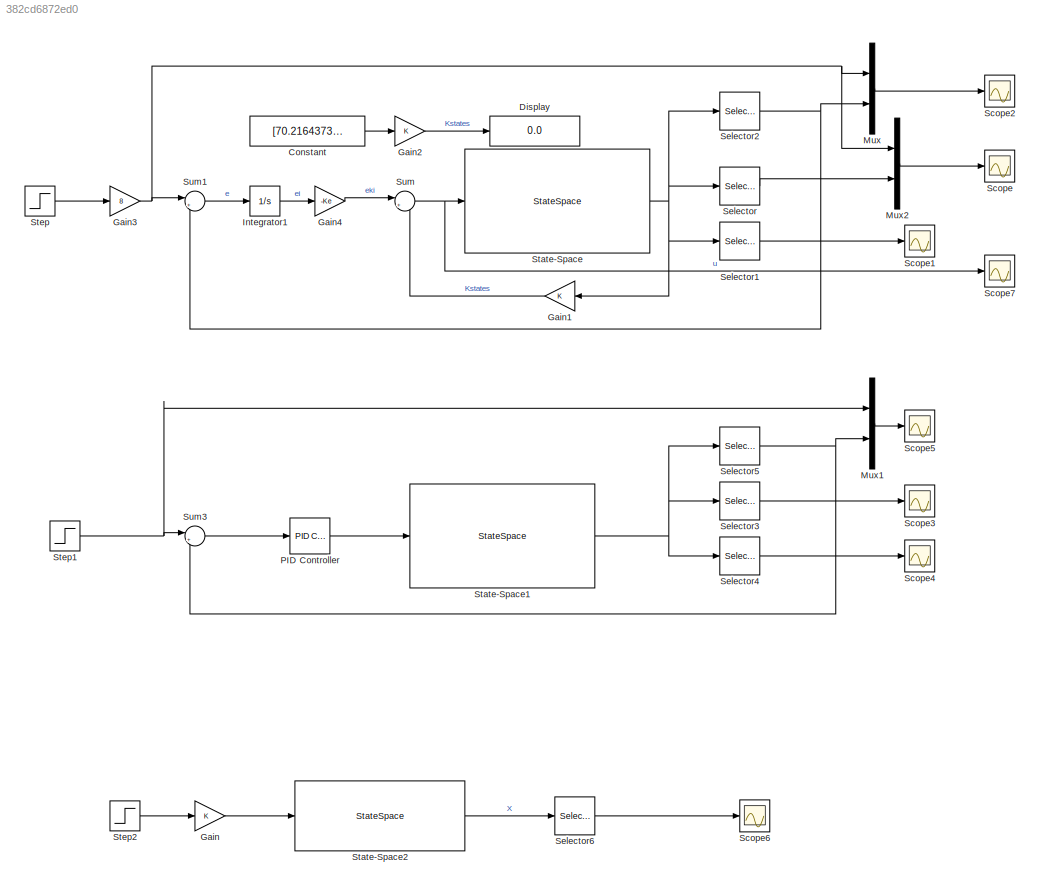
MODEL slx_382cd6872ed0
KIND model
CONFIG AbsTol = auto
CONFIG EnableMultiTasking = off
CONFIG FixedStep = 0.01
CONFIG MaxStep = auto
CONFIG MinStep = auto
CONFIG RelTol = 1e-3
CONFIG SampleTimeConstraint = Unconstrained
CONFIG SolverName = ode4
CONFIG StartTime = 0.0
CONFIG StopTime = tfim
BLOCK [Constant] Constant
  Value = [70.21643737196266, -7.864978745155763, 61.3877607433977, -9.588927142946162]
BLOCK [Display] Display
  Decimation = 1
BLOCK [Gain] Gain
BLOCK [Gain] Gain1
  Gain = K
  Multiplication = Matrix(K*u)
  NameLocation = top
BLOCK [Gain] Gain2
  Gain = K
  Multiplication = Matrix(K*u)
BLOCK [Gain] Gain3
  Gain = 8
BLOCK [Gain] Gain4
  Gain = -Ke
BLOCK [Integrator] Integrator1
BLOCK [Mux] Mux
  DisplayOption = bar
  Inputs = 2
BLOCK [Mux] Mux1
  Commented = on
  DisplayOption = bar
  Inputs = 2
BLOCK [Mux] Mux2
  DisplayOption = bar
  Inputs = 2
BLOCK [Reference] PID Controller  REF=slpidlib/PID Controller
  Commented = on
  LibrarySourceBlock = simulink/Continuous/PID Controller
  SourceBlock = slpidlib/PID Controller
  SourceType = PID 1dof
BLOCK [Scope] Scope
  Floating = off
  NumInputPorts = 1
  ScopeSpecificationString = Simulink.scopes.TimeScopeBlockCfg('CurrentConfiguration', extmgr.ConfigurationSet(extmgr.Configuration('Core','General UI',true),extmgr.Configuration('Core','Source UI',true),extmgr.Configuration('Sources','WiredSimulink',true),extmgr.Configuration('Visuals','Time Domain',true,'SerializedDisplays',{struct('MinYLimReal','-1.06069','MaxYLimReal','9.54624','YLabelReal','','MinYLimMag','0.00000','MaxY...<+1427ch>
BLOCK [Scope] Scope1
  Floating = off
  NumInputPorts = 1
  ScopeSpecificationString = Simulink.scopes.TimeScopeBlockCfg('CurrentConfiguration', extmgr.ConfigurationSet(extmgr.Configuration('Core','General UI',true),extmgr.Configuration('Core','Source UI',true),extmgr.Configuration('Sources','WiredSimulink',true,'DataLoggingVariableName','ScopeData1'),extmgr.Configuration('Visuals','Time Domain',true,'SerializedDisplays',{struct('MinYLimReal','-0.47016','MaxYLimReal','0.3608','YLabe...<+1412ch>
BLOCK [Scope] Scope2
  Floating = off
  NumInputPorts = 1
  ScopeSpecificationString = Simulink.scopes.TimeScopeBlockCfg('CurrentConfiguration', extmgr.ConfigurationSet(extmgr.Configuration('Core','General UI',true),extmgr.Configuration('Core','Source UI',true),extmgr.Configuration('Sources','WiredSimulink',true,'DataLoggingVariableName','ScopeData1'),extmgr.Configuration('Visuals','Time Domain',true,'SerializedDisplays',{struct('MinYLimReal','-0.52656','MaxYLimReal','4.73908','YLab...<+1404ch>
BLOCK [Scope] Scope3
  Commented = on
  Floating = off
  NumInputPorts = 1
  ScopeSpecificationString = Simulink.scopes.TimeScopeBlockCfg('CurrentConfiguration', extmgr.ConfigurationSet(extmgr.Configuration('Core','General UI',true),extmgr.Configuration('Core','Source UI',true),extmgr.Configuration('Sources','WiredSimulink',true,'DataLoggingVariableName','ScopeData1'),extmgr.Configuration('Visuals','Time Domain',true,'SerializedDisplays',{struct('MinYLimReal','-0.53773','MaxYLimReal','4.8396','YLabe...<+1408ch>
BLOCK [Scope] Scope4
  Commented = on
  Floating = off
  NumInputPorts = 1
  ScopeSpecificationString = Simulink.scopes.TimeScopeBlockCfg('CurrentConfiguration', extmgr.ConfigurationSet(extmgr.Configuration('Core','General UI',true),extmgr.Configuration('Core','Source UI',true),extmgr.Configuration('Sources','WiredSimulink',true,'DataLoggingVariableName','ScopeData2'),extmgr.Configuration('Visuals','Time Domain',true,'SerializedDisplays',{struct('MinYLimReal','-0.47016','MaxYLimReal','0.3608','YLabe...<+1412ch>
BLOCK [Scope] Scope5
  Commented = on
  Floating = off
  NumInputPorts = 1
  ScopeSpecificationString = Simulink.scopes.TimeScopeBlockCfg('CurrentConfiguration', extmgr.ConfigurationSet(extmgr.Configuration('Core','General UI',true),extmgr.Configuration('Core','Source UI',true),extmgr.Configuration('Sources','WiredSimulink',true,'DataLoggingVariableName','ScopeData3'),extmgr.Configuration('Visuals','Time Domain',true,'SerializedDisplays',{struct('MinYLimReal','-0.12777','MaxYLimReal','1.1499','YLabe...<+1382ch>
BLOCK [Scope] Scope6
  Floating = off
  NumInputPorts = 1
  ScopeSpecificationString = Simulink.scopes.TimeScopeBlockCfg('CurrentConfiguration', extmgr.ConfigurationSet(extmgr.Configuration('Core','General UI',true),extmgr.Configuration('Core','Source UI',true),extmgr.Configuration('Sources','WiredSimulink',true,'DataLoggingVariableName','ScopeData1'),extmgr.Configuration('Visuals','Time Domain',true,'SerializedDisplays',{struct('MinYLimReal','-1.17576','MaxYLimReal','2.25501','YLab...<+1461ch>
BLOCK [Scope] Scope7
  Floating = off
  NumInputPorts = 1
  ScopeSpecificationString = Simulink.scopes.TimeScopeBlockCfg('CurrentConfiguration', extmgr.ConfigurationSet(extmgr.Configuration('Core','General UI',true),extmgr.Configuration('Core','Source UI',true),extmgr.Configuration('Sources','WiredSimulink',true,'DataLoggingVariableName','ScopeData2'),extmgr.Configuration('Visuals','Time Domain',true,'SerializedDisplays',{struct('MinYLimReal','-0.93356','MaxYLimReal','7.95894','YLab...<+1435ch>
BLOCK [Selector] Selector
  IndexOptions = Index vector (dialog)
  Indices = [1 3]
  InputPortWidth = 4
  OutputSizes = 1
BLOCK [Selector] Selector1
  IndexOptions = Index vector (dialog)
  Indices = [2 4]
  InputPortWidth = 4
  OutputSizes = 1
BLOCK [Selector] Selector2
  IndexOptions = Index vector (dialog)
  Indices = [1]
  InputPortWidth = 4
  OutputSizes = 1
BLOCK [Selector] Selector3
  Commented = on
  IndexOptions = Index vector (dialog)
  Indices = [1 3]
  InputPortWidth = 4
  OutputSizes = 1
BLOCK [Selector] Selector4
  Commented = on
  IndexOptions = Index vector (dialog)
  Indices = [2 4]
  InputPortWidth = 4
  OutputSizes = 1
BLOCK [Selector] Selector5
  Commented = on
  IndexOptions = Index vector (dialog)
  Indices = [1]
  InputPortWidth = 4
  OutputSizes = 1
BLOCK [Selector] Selector6
  IndexOptions = Index vector (dialog)
  Indices = [1 3]
  InputPortWidth = 4
  OutputSizes = 1
BLOCK [StateSpace] State-Space
  A = A
  B = B
  C = C
  D = D
  InitialCondition = [0;0;0;0]
BLOCK [StateSpace] State-Space1
  A = A
  B = B
  C = C
  Commented = on
  D = D
  InitialCondition = [0;0;0;0]
BLOCK [StateSpace] State-Space2
  A = A
  B = B
  C = C
  D = D
  InitialCondition = [0;0;0;0]
BLOCK [Step] Step
  SampleTime = 0
BLOCK [Step] Step1
  Commented = on
  SampleTime = 0
BLOCK [Step] Step2
  SampleTime = 0
  Time = 10
BLOCK [Sum] Sum
  Inputs = |+-
BLOCK [Sum] Sum1
  Inputs = |+-
BLOCK [Sum] Sum3
  Commented = on
  Inputs = |+-
LINE Constant:1 -> Gain2:1
LINE Gain1:1 -> Sum:2
LINE Gain2:1 -> Display:1
NET Gain3:1 -> Mux2:1, Mux:1, Sum1:1
LINE Gain4:1 -> Sum:1
LINE Gain:1 -> State-Space2:1
LINE Integrator1:1 -> Gain4:1
LINE Mux1:1 -> Scope5:1
LINE Mux2:1 -> Scope:1
LINE Mux:1 -> Scope2:1
LINE PID Controller:1 -> State-Space1:1
LINE Selector1:1 -> Scope1:1
NET Selector2:1 -> Mux:2, Sum1:2
LINE Selector3:1 -> Scope3:1
LINE Selector4:1 -> Scope4:1
NET Selector5:1 -> Mux1:2, Sum3:2
LINE Selector6:1 -> Scope6:1
LINE Selector:1 -> Mux2:2
NET State-Space1:1 -> Selector3:1, Selector4:1, Selector5:1
LINE State-Space2:1 -> Selector6:1
NET State-Space:1 -> Gain1:1, Selector1:1, Selector2:1, Selector:1
NET Step1:1 -> Mux1:1, Sum3:1
LINE Step2:1 -> Gain:1
LINE Step:1 -> Gain3:1
LINE Sum1:1 -> Integrator1:1
LINE Sum3:1 -> PID Controller:1
NET Sum:1 -> Scope7:1, State-Space:1
note: NET lines group one-source signal fan-out (src -> all destinations, sorted); 1:1 wires keep LINE
